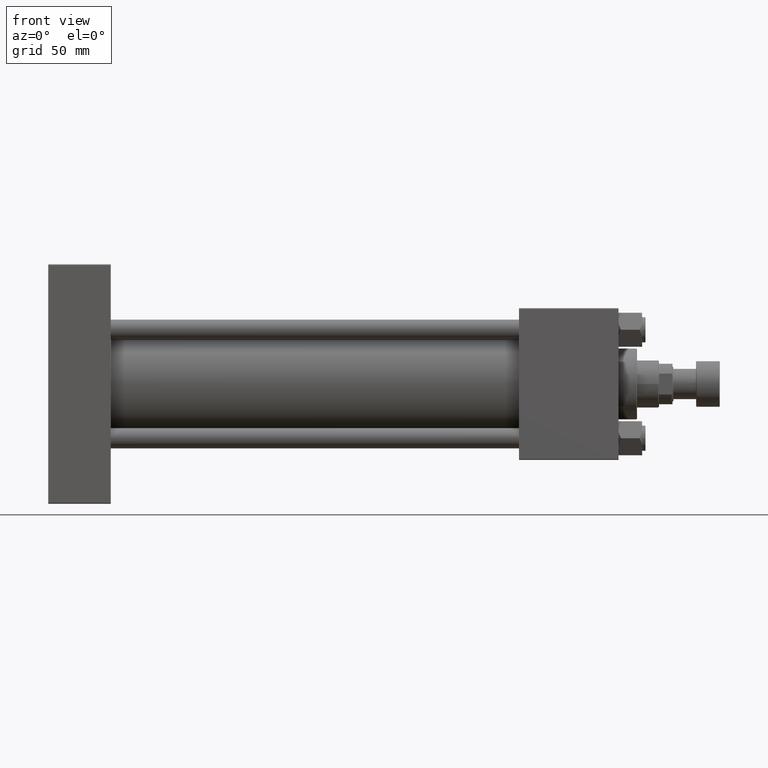
[diagram: clean part render]
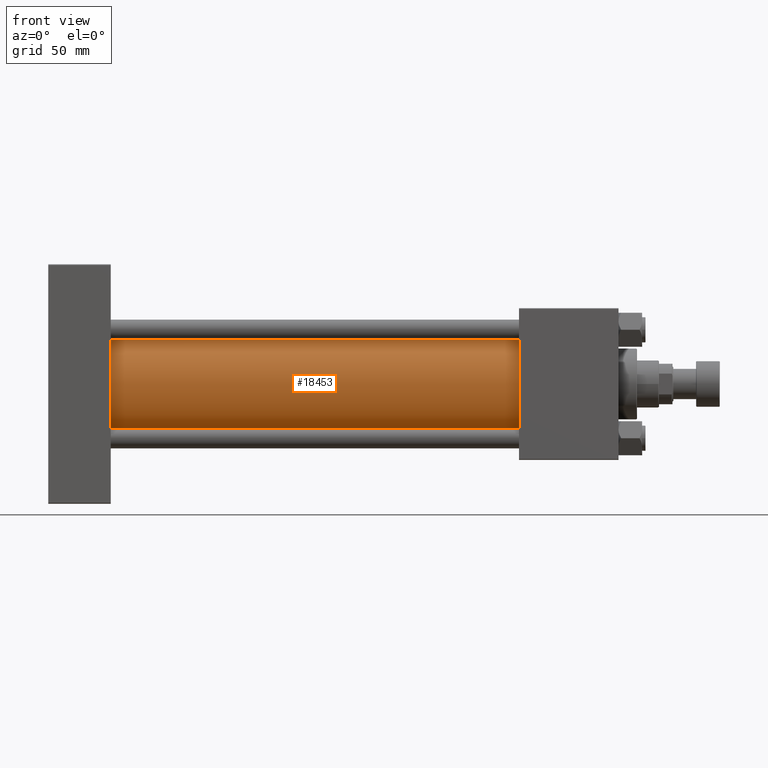
[diagram: same view with one face highlighted and labeled with its STEP entity id]
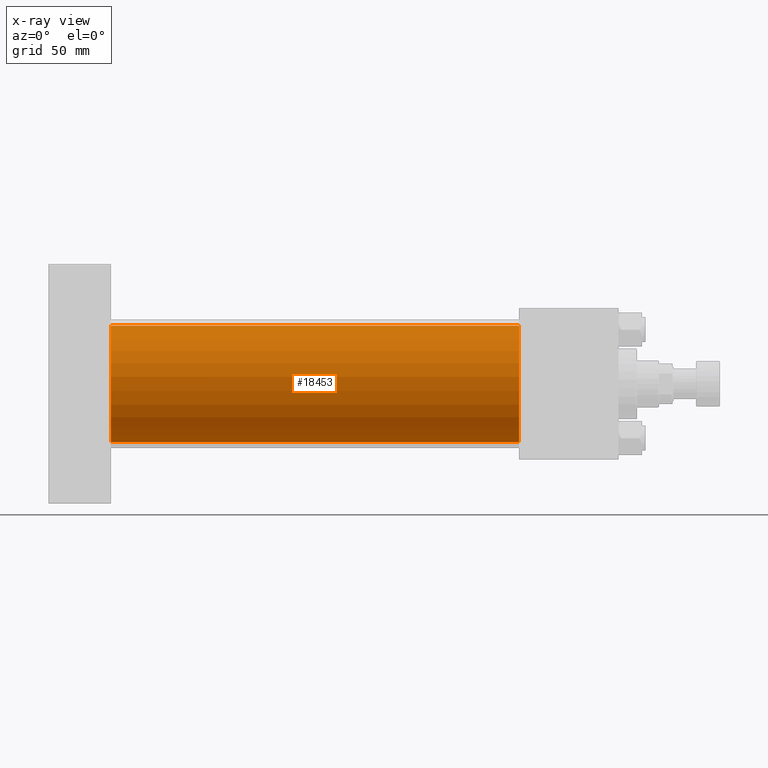
[diagram: x-ray of the same camera — body ghosted, the highlighted face saturated]
A machine part, front view. The second image highlights one B-rep face of the part: STEP entity #18453.
The next image is the same camera in x-ray: the body ghosted, the highlighted face saturated — about 0% of this face is hidden behind the body in this view.
In plain terms, the highlighted cylindrical surface (partial cylindrical patch) has radius 34.5 mm, axis along (-1, -0, -0).
Its self-contained STEP definition (entity closure, byte-faithful):
#731 = DIRECTION ( 'NONE',  ( -1.000000000000000000, -0.000000000000000000, -0.000000000000000000 ) ) ;
#1048 = ORIENTED_EDGE ( 'NONE', *, *, #43146, .F. ) ;
#8420 = LINE ( 'NONE', #37642, #39702 ) ;
#9111 = CARTESIAN_POINT ( 'NONE',  ( 278.9999999999999432, 1.622946243093158675E-15, -34.50000000000000000 ) ) ;
#9650 = CARTESIAN_POINT ( 'NONE',  ( 278.9999999999999432, 1.622946243093158675E-15, -34.50000000000000000 ) ) ;
#10638 = CARTESIAN_POINT ( 'NONE',  ( 278.9999999999999432, -2.602085213965210642E-15, 0.000000000000000000 ) ) ;
#14251 = VECTOR ( 'NONE', #25055, 1000.000000000000000 ) ;
#14642 = EDGE_CURVE ( 'NONE', #49651, #31899, #45529, .T. ) ;
#16366 = CIRCLE ( 'NONE', #46087, 34.50000000000000000 ) ;
#16724 = CARTESIAN_POINT ( 'NONE',  ( 37.00000000000000711, -2.602085213965210642E-15, 0.000000000000000000 ) ) ;
#18453 = ADVANCED_FACE ( 'NONE', ( #52308 ), #32352, .T. ) ;
#19683 = DIRECTION ( 'NONE',  ( 0.000000000000000000, 0.000000000000000000, -1.000000000000000000 ) ) ;
#19784 = CARTESIAN_POINT ( 'NONE',  ( 37.00000000000000711, 1.622946243093158675E-15, -34.50000000000000000 ) ) ;
#20498 = CARTESIAN_POINT ( 'NONE',  ( 278.9999999999999432, -2.602085213965210642E-15, 34.50000000000000000 ) ) ;
#22547 = EDGE_CURVE ( 'NONE', #27755, #31899, #46325, .T. ) ;
#22711 = VERTEX_POINT ( 'NONE', #20498 ) ;
#23136 = DIRECTION ( 'NONE',  ( 1.000000000000000000, 0.000000000000000000, 0.000000000000000000 ) ) ;
#24698 = DIRECTION ( 'NONE',  ( 1.000000000000000000, 0.000000000000000000, 0.000000000000000000 ) ) ;
#25055 = DIRECTION ( 'NONE',  ( -1.000000000000000000, -0.000000000000000000, -0.000000000000000000 ) ) ;
#26314 = AXIS2_PLACEMENT_3D ( 'NONE', #43802, #48582, #32084 ) ;
#27755 = VERTEX_POINT ( 'NONE', #38972 ) ;
#28395 = EDGE_CURVE ( 'NONE', #22711, #27755, #8420, .T. ) ;
#31899 = VERTEX_POINT ( 'NONE', #19784 ) ;
#32084 = DIRECTION ( 'NONE',  ( 0.000000000000000000, 0.000000000000000000, 1.000000000000000000 ) ) ;
#32352 = CYLINDRICAL_SURFACE ( 'NONE', #26314, 34.50000000000000000 ) ;
#33449 = DIRECTION ( 'NONE',  ( 0.000000000000000000, 0.000000000000000000, 1.000000000000000000 ) ) ;
#33562 = AXIS2_PLACEMENT_3D ( 'NONE', #16724, #24698, #33449 ) ;
#35180 = ORIENTED_EDGE ( 'NONE', *, *, #28395, .T. ) ;
#37642 = CARTESIAN_POINT ( 'NONE',  ( 278.9999999999999432, -2.602085213965210642E-15, 34.50000000000000000 ) ) ;
#38087 = ORIENTED_EDGE ( 'NONE', *, *, #22547, .T. ) ;
#38972 = CARTESIAN_POINT ( 'NONE',  ( 37.00000000000000711, -2.602085213965210642E-15, 34.50000000000000000 ) ) ;
#39702 = VECTOR ( 'NONE', #731, 1000.000000000000000 ) ;
#43146 = EDGE_CURVE ( 'NONE', #22711, #49651, #16366, .T. ) ;
#43691 = ORIENTED_EDGE ( 'NONE', *, *, #14642, .F. ) ;
#43802 = CARTESIAN_POINT ( 'NONE',  ( 278.9999999999999432, -2.602085213965210642E-15, 0.000000000000000000 ) ) ;
#45529 = LINE ( 'NONE', #9111, #14251 ) ;
#46087 = AXIS2_PLACEMENT_3D ( 'NONE', #10638, #23136, #19683 ) ;
#46325 = CIRCLE ( 'NONE', #33562, 34.50000000000000000 ) ;
#48582 = DIRECTION ( 'NONE',  ( -1.000000000000000000, -0.000000000000000000, -0.000000000000000000 ) ) ;
#49651 = VERTEX_POINT ( 'NONE', #9650 ) ;
#50866 = EDGE_LOOP ( 'NONE', ( #43691, #1048, #35180, #38087 ) ) ;
#52308 = FACE_OUTER_BOUND ( 'NONE', #50866, .T. ) ;